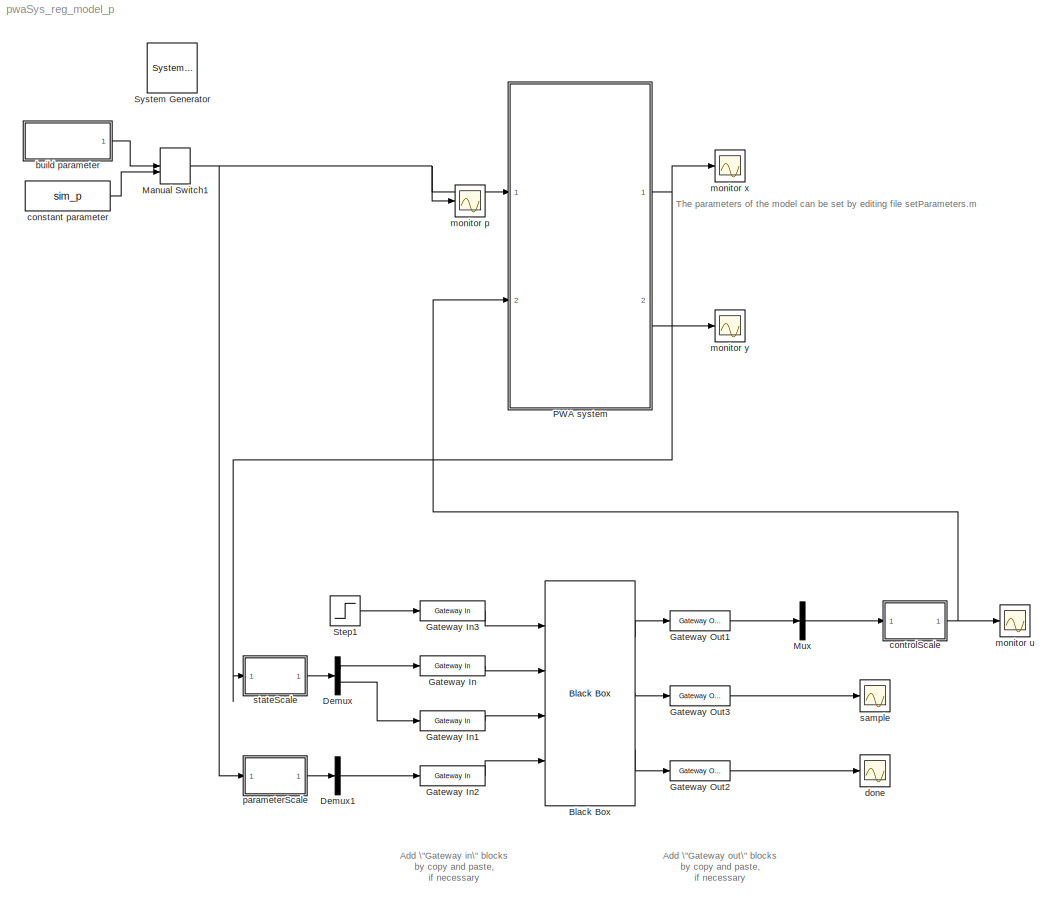
MODEL pwaSys_reg_model_p
KIND model
CONFIG InitFcn = load simulink.mat\nsetParameters
CONFIG StartFcn = load simulink.mat\nsetParameters\nclear res_X res_U res_Y res_P res_D \nclear res_Xest res_Dest res_Yest
CONFIG StopFcn = plotScope
BLOCK [Reference]  System Generator  REF=xbsIndex_r4/ System Generator
  AttributesFormatString = System\\nGenerator
  Impl_file = Vivado Implementation Defaults
  Ports = []
  SID = 138
  SourceBlock = xbsIndex_r4/ System Generator
  SourceType = Xilinx System Generator Block
  Synth_file = Vivado Synthesis Defaults
  Tag = genX
  UserData = DataTag0
  UserDataPersistent = on
  block_type = sysgen
  clock_wrapper = Clock Enables
  core_generation = According to Block Masks
  dbl_ovrd = According to Block Masks
  dcm_input_clock_period = 10
  deprecated_control = off
  directory = ./netlist
  eval_field = 0
  has_advanced_control = 0
  incr_netlist = off
  infoedit = System Generator
  package = fbg676
  part = xc7k325t
  proj_type = Vivado
  run_coregen = off
  sg_icon_stat = 50,50,0,0,token,white,0,58c5b5770fe5f7c311f53dbc6e73f0f6,right,,[ ],[ ]
  sg_mask_display = fprintf('','COMMENT: begin icon graphics');\npatch([0 50 50 0 0 ],[0 0 50 50 0 ],[1 1 1 ]);\npatch([1.6375 16.81 27.31 37.81 48.31 27.31 12.1375 1.6375 ],[36.655 36.655 47.155 36.655 47.155 47.155 47.155 36.655 ],[0.933333 0.203922 0.141176 ]);\npatch([12.1375 27.31 16.81 1.6375 12.1375 ],[26.155 26.155 36.655 36.655 26.155 ],[0.698039 0.0313725 0.219608 ]);\npatch([1.6375 16.81 27.31 12.1375 1.63...<+337ch>
  sggui_pos = 326,312,454,398
  simulink_period = clk_period
  speed = -3
  synthesis_tool = Vivado
  sysclk_period = 10
  testbench = off
  trim_vbits = Everywhere in SubSystem
  xilinxfamily = kintex7
BLOCK [Reference] Black Box  REF=xbsIndex_r4/Black Box
  Ports = [4, 3]
  SID = 137
  SourceBlock = xbsIndex_r4/Black Box
  SourceType = Xilinx Black Box Block
  block_type = blackbox2
  has_advanced_control = 0
  infoedit = Incorporates black box HDL and simulation model into a System Generator design.<br><br>You must supply a Black Box with certain information about the HDL component you would like to bring into System Generator. This information is provided through a Matlab function.<br><br>When \"Simulation mode\" is set to \"Inactive\", you will typically want to provide a separate simulation model by using a Sim...<+134ch>
  init_code = embeddedSystem_config
  sg_icon_stat = 90,225,4,3,white,blue,0,a510ed97,right,,[ ],[ ]
  sg_mask_display = fprintf('','COMMENT: begin icon graphics');\npatch([0 90 90 0 0 ],[0 0 225 225 0 ],[0.77 0.82 0.91 ]);\nplot([0 90 90 0 0 ],[0 0 225 225 0 ]);\npatch([18.3 35.64 47.64 59.64 71.64 47.64 30.3 18.3 ],[125.32 125.32 137.32 125.32 137.32 137.32 137.32 125.32 ],[1 1 1 ]);\npatch([30.3 47.64 35.64 18.3 30.3 ],[113.32 113.32 125.32 125.32 113.32 ],[0.931 0.946 0.973 ]);\npatch([18.3 35.64 47.64 30.3 18.3...<+614ch>
  sggui_pos = -10,14,403,439
  sim_method = ISE Simulator
  verbose = off
  xl_area = [0,0,0,0,0,0,0]
  xl_use_area = off
BLOCK [Demux] Demux
  DisplayOption = bar
  Outputs = sim_nx
  Ports = [1, 2]
  SID = 100
BLOCK [Demux] Demux1
  DisplayOption = bar
  Outputs = sim_np
  Ports = [1, 1]
  SID = 101
BLOCK [Reference] Gateway In  REF=xbsIndex_r4/Gateway In
  ADCChannel = '1'
  LOCs = {}
  Ports = [1, 1]
  SID = 102
  SourceBlock = xbsIndex_r4/Gateway In
  SourceType = Xilinx Gateway In Block
  UseAsADC = off
  address_offset = hex2dec('00')
  arith_type = Unsigned
  automatic_assignment = on
  bin_pt = 0
  block_type = gatewayin
  columns = 1
  dbl_ovrd = off
  exp_width = 8
  frac_width = 24
  gui_display_data_type = Fixed-point
  has_advanced_control = 0
  hdl_port = on
  infoedit = Gateway in block.  Converts inputs of type Simulink integer, single, double and fixed-point to  Xilinx fixed-point or floating-point data type.<br><br>Hardware notes:  In hardware these blocks become top level input ports.  <repeated x4 — deduplicated; at blocks: Gateway In, Gateway In1, Gateway In2, Gateway In3>
  inherit_from_input = off
  interface = None
  intf_description = ''
  intf_name = ''
  io_standard = {}
  locs_specified = off
  n_bits = sim_n_bit_in
  overflow = Saturate
  period = clk_period
  preci_type = Single
  quantization = Round  (unbiased: +/- Inf)
  rows = 1
  sg_icon_stat = 65,20,1,1,white,yellow,1,00d3666e,right,,[ ],[ ]
  sg_mask_display = fprintf('','COMMENT: begin icon graphics');\npatch([0 65 65 0 0 ],[0 0 20 20 0 ],[0.95 0.93 0.65 ]);\nplot([0 65 65 0 0 ],[0 0 20 20 0 ]);\npatch([27.55 30.44 32.44 34.44 36.44 32.44 29.55 27.55 ],[12.22 12.22 14.22 12.22 14.22 14.22 14.22 12.22 ],[1 1 1 ]);\npatch([29.55 32.44 30.44 27.55 29.55 ],[10.22 10.22 12.22 12.22 10.22 ],[0.985 0.979 0.895 ]);\npatch([27.55 30.44 32.44 29.55 27.55 ],[8.22...<+396ch>  <repeated x4 — deduplicated; at blocks: Gateway In, Gateway In1, Gateway In2, Gateway In3>
  sggui_pos = -10,14,388,698
  timing_constraint = None
  xl_area = [0,0,0,0,0,0,0]
  xl_use_area = off
BLOCK [Reference] Gateway In1  REF=xbsIndex_r4/Gateway In
  ADCChannel = '1'
  LOCs = {}
  Ports = [1, 1]
  SID = 103
  SourceBlock = xbsIndex_r4/Gateway In
  SourceType = Xilinx Gateway In Block
  UseAsADC = off
  address_offset = hex2dec('00')
  arith_type = Unsigned
  automatic_assignment = on
  bin_pt = 0
  block_type = gatewayin
  columns = 1
  dbl_ovrd = off
  exp_width = 8
  frac_width = 24
  gui_display_data_type = Fixed-point
  has_advanced_control = 0
  hdl_port = on
  inherit_from_input = off
  interface = None
  intf_description = ''
  intf_name = ''
  io_standard = {}
  locs_specified = off
  n_bits = sim_n_bit_in
  overflow = Saturate
  period = clk_period
  preci_type = Single
  quantization = Round  (unbiased: +/- Inf)
  rows = 1
  sg_icon_stat = 65,20,1,1,white,yellow,1,00d3666e,right,,[ ],[ ]
  sggui_pos = -10,14,388,698
  timing_constraint = None
  xl_area = [0,0,0,0,0,0,0]
  xl_use_area = off
BLOCK [Reference] Gateway In2  REF=xbsIndex_r4/Gateway In
  ADCChannel = '1'
  LOCs = {}
  Ports = [1, 1]
  SID = 104
  SourceBlock = xbsIndex_r4/Gateway In
  SourceType = Xilinx Gateway In Block
  UseAsADC = off
  address_offset = hex2dec('00')
  arith_type = Unsigned
  automatic_assignment = on
  bin_pt = 0
  block_type = gatewayin
  columns = 1
  dbl_ovrd = off
  exp_width = 8
  frac_width = 24
  gui_display_data_type = Fixed-point
  has_advanced_control = 0
  hdl_port = on
  inherit_from_input = off
  interface = None
  intf_description = ''
  intf_name = ''
  io_standard = {}
  locs_specified = off
  n_bits = sim_n_bit_in
  overflow = Saturate
  period = clk_period
  preci_type = Single
  quantization = Round  (unbiased: +/- Inf)
  rows = 1
  sg_icon_stat = 65,20,1,1,white,yellow,1,00d3666e,right,,[ ],[ ]
  sggui_pos = -10,14,388,698
  timing_constraint = None
  xl_area = [0,0,0,0,0,0,0]
  xl_use_area = off
BLOCK [Reference] Gateway In3  REF=xbsIndex_r4/Gateway In
  ADCChannel = '1'
  LOCs = {}
  Ports = [1, 1]
  SID = 105
  SourceBlock = xbsIndex_r4/Gateway In
  SourceType = Xilinx Gateway In Block
  UseAsADC = off
  address_offset = hex2dec('00')
  arith_type = Boolean
  automatic_assignment = on
  bin_pt = 14
  block_type = gatewayin
  columns = 1
  dbl_ovrd = off
  exp_width = 8
  frac_width = 24
  gui_display_data_type = Boolean
  has_advanced_control = 0
  hdl_port = on
  inherit_from_input = off
  interface = None
  intf_description = ''
  intf_name = ''
  io_standard = {}
  locs_specified = off
  n_bits = 16
  overflow = Saturate
  period = clk_period
  preci_type = Single
  quantization = Round  (unbiased: +/- Inf)
  rows = 1
  sg_icon_stat = 65,20,1,1,white,yellow,1,00d3666e,right,,[ ],[ ]
  sggui_pos = -10,14,388,698
  timing_constraint = None
  xl_area = [0,0,0,0,0,0,0]
  xl_use_area = off
BLOCK [Reference] Gateway Out1  REF=xbsIndex_r4/Gateway Out
  DACChannel = '1'
  LOCs = {}
  Ports = [1, 1]
  SID = 106
  SourceBlock = xbsIndex_r4/Gateway Out
  SourceType = Xilinx Gateway Out Block
  UseAsDAC = off
  address_offset = hex2dec('00')
  automatic_assignment = on
  block_type = gatewayout
  columns = 1
  has_advanced_control = 0
  hdl_port = on
  infoedit = Gateway out block.  Converts Xilinx fixed-point or floating-point type inputs into ouputs of type Simulink integer, single, double, or fixed-point.<br><br>Hardware notes:  In hardware these blocks become top level output ports or are discarded, depending on how they are configured.  <repeated x3 — deduplicated; at blocks: Gateway Out1, Gateway Out2, Gateway Out3>
  inherit_from_input = off
  interface = None
  intf_description = ''
  intf_name = ''
  io_standard = {}
  locs_specified = off
  rows = 1
  sg_icon_stat = 60,20,1,1,white,yellow,1,cc31b7ac,right,,[ ],[ ]
  sg_mask_display = fprintf('','COMMENT: begin icon graphics');\npatch([0 60 60 0 0 ],[0 0 20 20 0 ],[0.95 0.93 0.65 ]);\nplot([0 60 60 0 0 ],[0 0 20 20 0 ]);\npatch([25.55 28.44 30.44 32.44 34.44 30.44 27.55 25.55 ],[12.22 12.22 14.22 12.22 14.22 14.22 14.22 12.22 ],[1 1 1 ]);\npatch([27.55 30.44 28.44 25.55 27.55 ],[10.22 10.22 12.22 12.22 10.22 ],[0.985 0.979 0.895 ]);\npatch([25.55 28.44 30.44 27.55 25.55 ],[8.22...<+397ch>  <repeated x3 — deduplicated; at blocks: Gateway Out1, Gateway Out2, Gateway Out3>
  sggui_pos = -10,14,410,600
  timing_constraint = None
  xl_area = [0,0,0,0,0,0,0]
  xl_use_area = off
BLOCK [Reference] Gateway Out2  REF=xbsIndex_r4/Gateway Out
  DACChannel = '1'
  LOCs = {}
  Ports = [1, 1]
  SID = 107
  SourceBlock = xbsIndex_r4/Gateway Out
  SourceType = Xilinx Gateway Out Block
  UseAsDAC = off
  address_offset = hex2dec('00')
  automatic_assignment = on
  block_type = gatewayout
  columns = 1
  has_advanced_control = 0
  hdl_port = on
  inherit_from_input = off
  interface = None
  intf_description = ''
  intf_name = ''
  io_standard = {}
  locs_specified = off
  rows = 1
  sg_icon_stat = 60,20,1,1,white,yellow,1,cc31b7ac,right,,[ ],[ ]
  sggui_pos = 0,24,410,600
  timing_constraint = None
  xl_area = [0,0,0,0,0,0,0]
  xl_use_area = off
BLOCK [Reference] Gateway Out3  REF=xbsIndex_r4/Gateway Out
  DACChannel = '1'
  LOCs = {}
  Ports = [1, 1]
  SID = 108
  SourceBlock = xbsIndex_r4/Gateway Out
  SourceType = Xilinx Gateway Out Block
  UseAsDAC = off
  address_offset = hex2dec('00')
  automatic_assignment = on
  block_type = gatewayout
  columns = 1
  has_advanced_control = 0
  hdl_port = on
  inherit_from_input = off
  interface = None
  intf_description = ''
  intf_name = ''
  io_standard = {}
  locs_specified = off
  rows = 1
  sg_icon_stat = 60,20,1,1,white,yellow,1,cc31b7ac,right,,[ ],[ ]
  sggui_pos = 0,24,410,600
  timing_constraint = None
  xl_area = [0,0,0,0,0,0,0]
  xl_use_area = off
BLOCK [ManualSwitch] Manual Switch1
  CurrentSetting = 0
  SID = 31
BLOCK [Mux] Mux
  DisplayOption = bar
  Inputs = sim_nu
  Ports = [1, 1]
  SID = 109
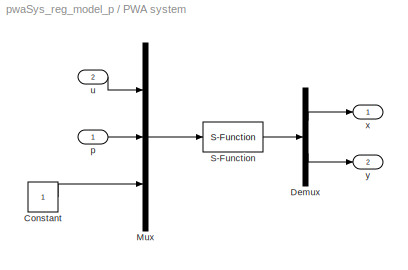
BLOCK [SubSystem] PWA system
  Ports = [2, 2]
  RequestExecContextInheritance = off
  SID = 5
  Variant = off
BLOCK [Constant] PWA system/Constant
  SID = 26
BLOCK [Demux] PWA system/Demux
  DisplayOption = bar
  Outputs = [sim_nx sim_ny]
  Ports = [1, 2]
  SID = 19
BLOCK [Mux] PWA system/Mux
  DisplayOption = bar
  Inputs = 3
  Ports = [3, 1]
  SID = 20
BLOCK [S-Function] PWA system/S-Function
  EnableBusSupport = off
  FunctionName = s_pwaSys_c
  Parameters = A,B,C,D,H,K,sim_x0
  Ports = [1, 1]
  SFunctionDeploymentMode = off
  SID = 139
BLOCK [Inport] PWA system/p
  IconDisplay = Port number
  SID = 8
BLOCK [Inport] PWA system/u
  IconDisplay = Port number
  Port = 2
  SID = 6
BLOCK [Outport] PWA system/x
  IconDisplay = Port number
  SID = 7
BLOCK [Outport] PWA system/y
  IconDisplay = Port number
  Port = 2
  SID = 10
BLOCK [Step] Step1
  SID = 110
  SampleTime = 0
  Time = 0.5
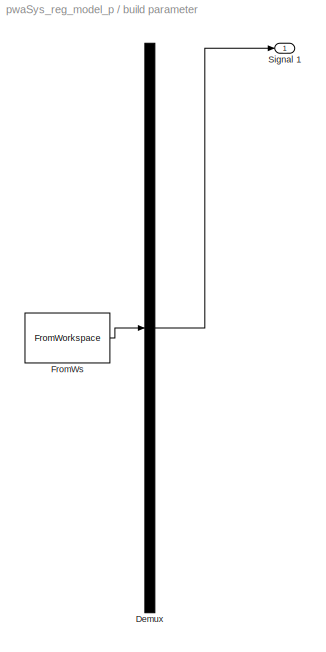
BLOCK [SubSystem] build parameter
  ClipboardFcn = sigbuilder_block('clipboard');
  CloseFcn = sigbuilder_block('close');
  ContinueFcn = sigbuilder_block('continue');
  CopyFcn = sigbuilder_block('copy');
  DeleteFcn = sigbuilder_block('delete');
  LoadFcn = sigbuilder_block('load');
  MaskHideContents = on
  ModelCloseFcn = sigbuilder_block('modelClose');
  NameChangeFcn = sigbuilder_block('namechange');
  OpenFcn = sigbuilder_block('open',[433.6 128 558.4 400.8 ]);
  PauseFcn = sigbuilder_block('pause');
  Ports = [0, 1]
  PreSaveFcn = sigbuilder_block('preSave');
  RequestExecContextInheritance = off
  SID = 12
  StartFcn = sigbuilder_block('start');
  StopFcn = sigbuilder_block('stop');
  Tag = STV Subsys
  Variant = off
BLOCK [Demux] build parameter/Demux
  Outputs = 1
  Ports = [1, 1]
  SID = 12:1
  Tag = STV Demux
BLOCK [FromWorkspace] build parameter/FromWs
  SID = 12:2
  SampleTime = 0
  SigBuilderData = DataTag1
  Tag = STV FromWs
  VariableName = tuvar
  VnvData = DataTag2
  ZeroCross = on
BLOCK [Outport] build parameter/Signal 1
  IconDisplay = Port number
  SID = 12:3
  Tag = STV Outport
BLOCK [Constant] constant parameter
  SID = 29
  Value = sim_p
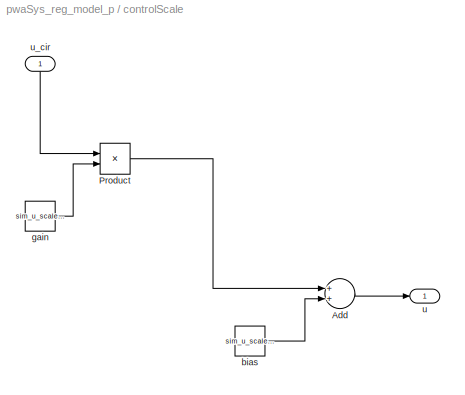
BLOCK [SubSystem] controlScale
  Ports = [1, 1]
  RequestExecContextInheritance = off
  SID = 111
  Variant = off
BLOCK [Sum] controlScale/Add
  InputSameDT = off
  OutDataTypeStr = Inherit: Inherit via internal rule
  Ports = [2, 1]
  SID = 113
  SaturateOnIntegerOverflow = off
BLOCK [Product] controlScale/Product
  InputSameDT = off
  OutDataTypeStr = Inherit: Inherit via internal rule
  Ports = [2, 1]
  RndMeth = Floor
  SID = 114
  SaturateOnIntegerOverflow = off
BLOCK [Constant] controlScale/bias
  SID = 115
  Value = sim_u_scale_bias
BLOCK [Constant] controlScale/gain
  SID = 116
  Value = sim_u_scale_gain
BLOCK [Outport] controlScale/u
  IconDisplay = Port number
  SID = 117
BLOCK [Inport] controlScale/u_cir
  IconDisplay = Port number
  SID = 112
BLOCK [Scope] done
  Ports = [1]
  SID = 125
  ScopeSpecificationString = C++SS(StrPVP('SaveName','ScopeData'),StrPVP('SaveName','ScopeData1'),StrPVP('LimitDataPoints','on'),StrPVP('DataFormat','Array'),StrPVP('Decimation','1'),StrPVP('BlockParamSampleInput','off'),StrPVP('SaveName','ScopeData1'),StrPVP('SaveName','ScopeData1'))
BLOCK [Scope] monitor p
  Ports = [1]
  SID = 24
  ScopeSpecificationString = C++SS(StrPVP('Location','[188, 365, 502, 602]'),StrPVP('Open','off'),MxPVP('AxesTitles',24,'struct(''axes1'',''%<SignalLabel>'')'),MxPVP('ScopeGraphics',28,'struct(''FigureColor'',''[0.5 0.5 0.5]'',''AxesColor'',''[0 0 0]'',''AxesTickColor'',''[1 1 1]'',''LineColors'',''[1 1 0;1 0 1;0 1 1;1 0 0;0 1 0;0 0 1]'',''LineStyles'',''-|-|-|-|-|-'',''LineWidths'',''[0.5 0.5 0.5 0.5 0.5 0.5]'',''MarkerStyle...<+263ch>
BLOCK [Scope] monitor u
  Ports = [1]
  SID = 126
  ScopeSpecificationString = Simulink.scopes.TimeScopeBlockCfg('CurrentConfiguration', extmgr.ConfigurationSet(extmgr.Configuration('Core','General UI',true),extmgr.Configuration('Core','Source UI',true),extmgr.Configuration('Sources','WiredSimulink',true,'DataLogging',true,'DataLoggingVariableName','res_U','DataLoggingSaveFormat','StructureWithTime','DataLoggingDecimation','1','DataLoggingDecimateData',true),extmgr.Configura...<+1611ch>
BLOCK [Scope] monitor x
  Ports = [1]
  SID = 16
  ScopeSpecificationString = C++SS(StrPVP('Location','[188, 364, 512, 603]'),StrPVP('Open','off'),MxPVP('AxesTitles',24,'struct(''axes1'',''%<SignalLabel>'')'),MxPVP('ScopeGraphics',28,'struct(''FigureColor'',''[0.5 0.5 0.5]'',''AxesColor'',''[0 0 0]'',''AxesTickColor'',''[1 1 1]'',''LineColors'',''[1 1 0;1 0 1;0 1 1;1 0 0;0 1 0;0 0 1]'',''LineStyles'',''-|-|-|-|-|-'',''LineWidths'',''[0.5 0.5 0.5 0.5 0.5 0.5]'',''MarkerStyle...<+263ch>
BLOCK [Scope] monitor y
  Ports = [1]
  SID = 17
  ScopeSpecificationString = C++SS(StrPVP('Location','[188, 365, 502, 602]'),StrPVP('Open','off'),MxPVP('AxesTitles',24,'struct(''axes1'',''%<SignalLabel>'')'),MxPVP('ScopeGraphics',28,'struct(''FigureColor'',''[0.5 0.5 0.5]'',''AxesColor'',''[0 0 0]'',''AxesTickColor'',''[1 1 1]'',''LineColors'',''[1 1 0;1 0 1;0 1 1;1 0 0;0 1 0;0 0 1]'',''LineStyles'',''-|-|-|-|-|-'',''LineWidths'',''[0.5 0.5 0.5 0.5 0.5 0.5]'',''MarkerStyle...<+263ch>
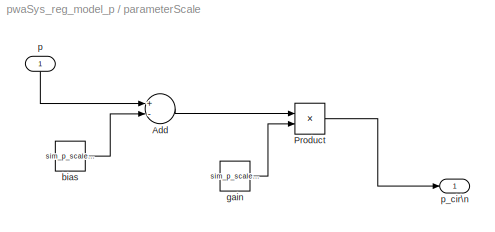
BLOCK [SubSystem] parameterScale
  Ports = [1, 1]
  RequestExecContextInheritance = off
  SID = 118
  Variant = off
BLOCK [Sum] parameterScale/Add
  InputSameDT = off
  Inputs = +-
  OutDataTypeStr = Inherit: Inherit via internal rule
  Ports = [2, 1]
  SID = 120
  SaturateOnIntegerOverflow = off
BLOCK [Product] parameterScale/Product
  InputSameDT = off
  OutDataTypeStr = Inherit: Inherit via internal rule
  Ports = [2, 1]
  RndMeth = Floor
  SID = 121
  SaturateOnIntegerOverflow = off
BLOCK [Constant] parameterScale/bias
  SID = 122
  Value = sim_p_scale_bias
BLOCK [Constant] parameterScale/gain
  SID = 123
  Value = sim_p_scale_gain
BLOCK [Inport] parameterScale/p
  IconDisplay = Port number
  SID = 119
BLOCK [Outport] parameterScale/p_cir\n
  IconDisplay = Port number
  SID = 124
BLOCK [Scope] sample
  Ports = [1]
  SID = 127
  ScopeSpecificationString = C++SS(StrPVP('SaveName','ScopeData'),StrPVP('LimitDataPoints','on'),StrPVP('DataFormat','Array'),StrPVP('Decimation','1'),StrPVP('BlockParamSampleInput','off'),StrPVP('SaveName','ScopeData'),StrPVP('SaveName','ScopeData'))
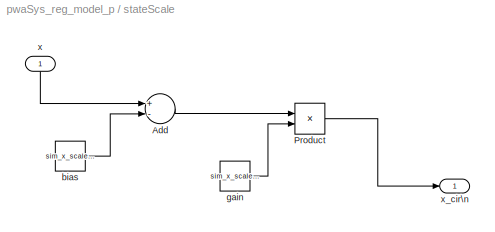
BLOCK [SubSystem] stateScale
  Ports = [1, 1]
  RequestExecContextInheritance = off
  SID = 128
  Variant = off
BLOCK [Sum] stateScale/Add
  InputSameDT = off
  Inputs = +-
  OutDataTypeStr = Inherit: Inherit via internal rule
  Ports = [2, 1]
  SID = 130
  SaturateOnIntegerOverflow = off
BLOCK [Product] stateScale/Product
  InputSameDT = off
  OutDataTypeStr = Inherit: Inherit via internal rule
  Ports = [2, 1]
  RndMeth = Floor
  SID = 131
  SaturateOnIntegerOverflow = off
BLOCK [Constant] stateScale/bias
  SID = 132
  Value = sim_x_scale_bias
BLOCK [Constant] stateScale/gain
  SID = 133
  Value = sim_x_scale_gain
BLOCK [Inport] stateScale/x
  IconDisplay = Port number
  SID = 129
BLOCK [Outport] stateScale/x_cir\n
  IconDisplay = Port number
  SID = 134
ANNOTATION (root): \n \n
ANNOTATION (root): \n \n The parameters of the model can be set by editing file setParameters.m \n \n You can generate custom signals for system parameters (p) or you can set \n them constant (choose with the orange switches) \n \n The simulation results are also saved in MATLAB workspace as variables \n res_X, res_Y, res_U, res_P and automatically plotted
ANNOTATION (root): Add \"Gateway in\" blocks \nby copy and paste,\nif necessary
ANNOTATION (root): Add \"Gateway out\" blocks \nby copy and paste,\nif necessary
LINE Black Box:1 -> Gateway Out1:1
LINE Black Box:2 -> Gateway Out3:1
LINE Black Box:3 -> Gateway Out2:1
LINE Demux1:1 -> Gateway In2:1
LINE Demux:1 -> Gateway In:1
LINE Demux:2 -> Gateway In1:1
LINE Gateway In1:1 -> Black Box:3
LINE Gateway In2:1 -> Black Box:4
LINE Gateway In3:1 -> Black Box:1
LINE Gateway In:1 -> Black Box:2
LINE Gateway Out1:1 -> Mux:1
LINE Gateway Out2:1 -> done:1
LINE Gateway Out3:1 -> sample:1
NET Manual Switch1:1 -> PWA system:1, monitor p:1, parameterScale:1
LINE Mux:1 -> controlScale:1
LINE PWA system/Constant:1 -> PWA system/Mux:3
LINE PWA system/Demux:1 -> PWA system/x:1
LINE PWA system/Demux:2 -> PWA system/y:1
LINE PWA system/Mux:1 -> PWA system/S-Function:1
LINE PWA system/S-Function:1 -> PWA system/Demux:1
LINE PWA system/p:1 -> PWA system/Mux:2
LINE PWA system/u:1 -> PWA system/Mux:1
NET PWA system:1 -> monitor x:1, stateScale:1
LINE PWA system:2 -> monitor y:1
LINE Step1:1 -> Gateway In3:1
LINE build parameter/Demux:1 -> build parameter/Signal 1:1
LINE build parameter/FromWs:1 -> build parameter/Demux:1
LINE build parameter:1 -> Manual Switch1:1
LINE constant parameter:1 -> Manual Switch1:2
LINE controlScale/Add:1 -> controlScale/u:1
LINE controlScale/Product:1 -> controlScale/Add:1
LINE controlScale/bias:1 -> controlScale/Add:2
LINE controlScale/gain:1 -> controlScale/Product:2
LINE controlScale/u_cir:1 -> controlScale/Product:1
NET controlScale:1 -> PWA system:2, monitor u:1
LINE parameterScale/Add:1 -> parameterScale/Product:1
LINE parameterScale/Product:1 -> parameterScale/p_cir\n:1
LINE parameterScale/bias:1 -> parameterScale/Add:2
LINE parameterScale/gain:1 -> parameterScale/Product:2
LINE parameterScale/p:1 -> parameterScale/Add:1
LINE parameterScale:1 -> Demux1:1
LINE stateScale/Add:1 -> stateScale/Product:1
LINE stateScale/Product:1 -> stateScale/x_cir\n:1
LINE stateScale/bias:1 -> stateScale/Add:2
LINE stateScale/gain:1 -> stateScale/Product:2
LINE stateScale/x:1 -> stateScale/Add:1
LINE stateScale:1 -> Demux:1
note: NET lines group one-source signal fan-out (src -> all destinations, sorted); 1:1 wires keep LINE
